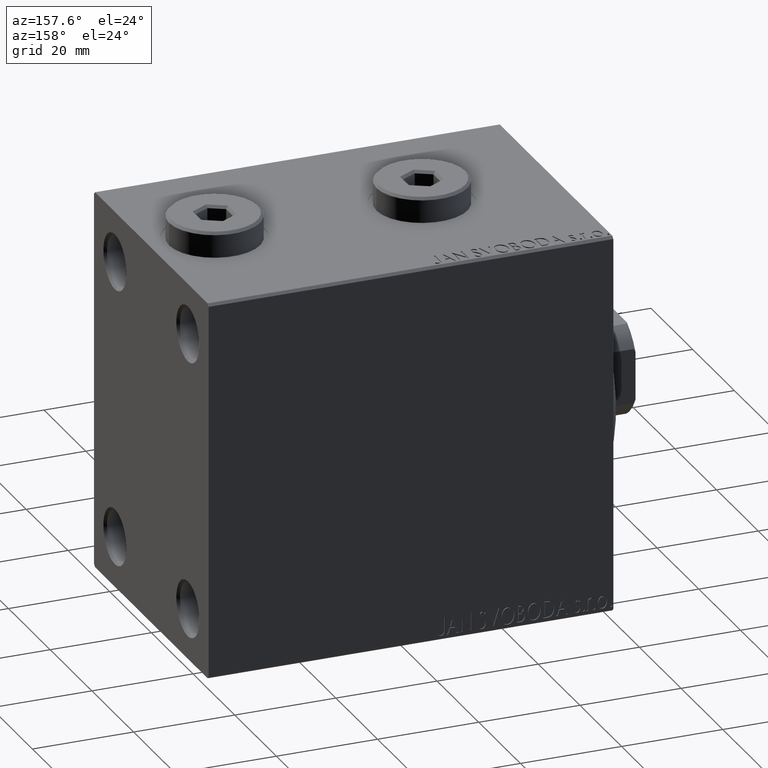
[diagram: clean part render]
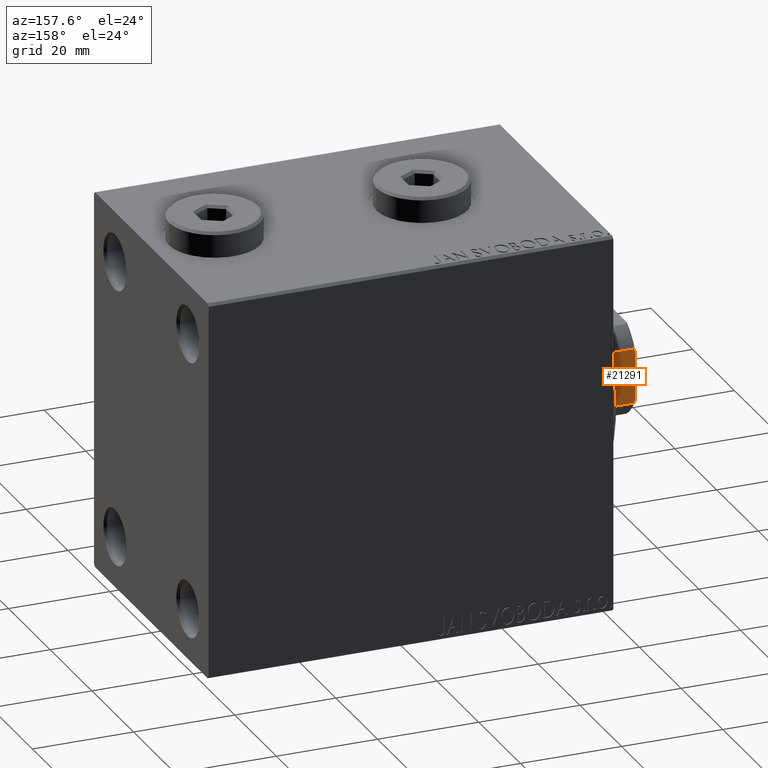
[diagram: same view with one face highlighted and labeled with its STEP entity id]
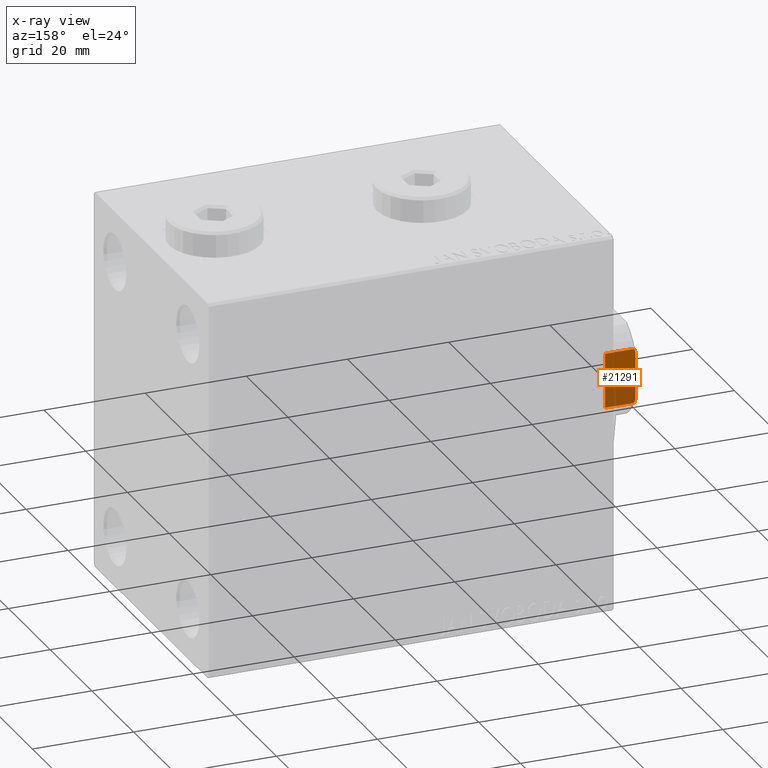
[diagram: x-ray of the same camera — body ghosted, the highlighted face saturated]
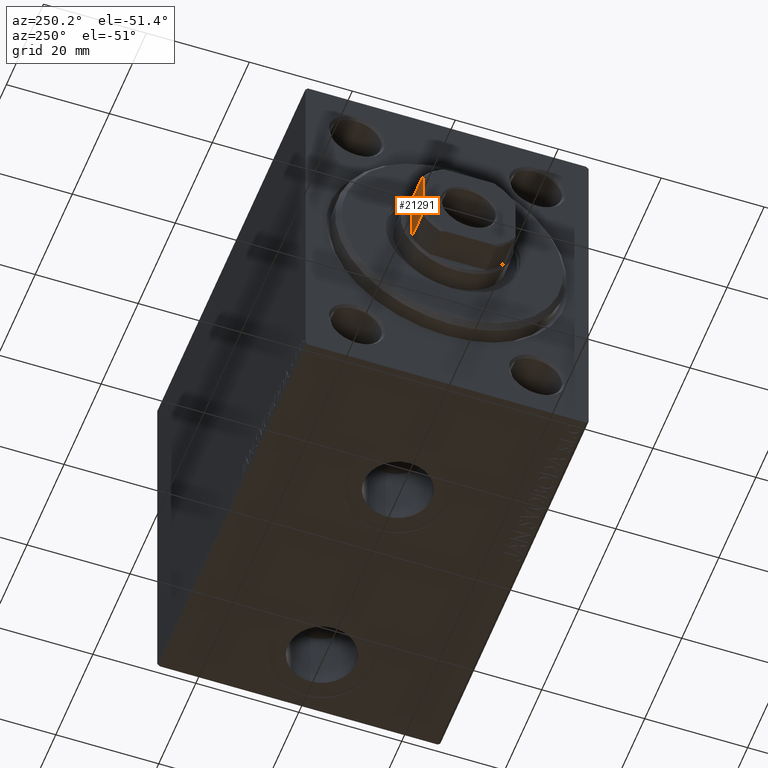
[diagram: same view with one face highlighted and labeled with its STEP entity id]
A machine part, auxiliary view. The second image highlights one B-rep face of the part: STEP entity #21291.
The next image is the same camera in x-ray: the body ghosted, the highlighted face saturated — about 31% of this face is hidden behind the body in this view.
A second angle (auxiliary view) of the same face is appended — the face is thin or edge-on in the first view.
In plain terms, the highlighted planar face has unit normal (0, -1, 0).
Its self-contained STEP definition (entity closure, byte-faithful):
#185 = VERTEX_POINT ( 'NONE', #2838 ) ;
#917 = VERTEX_POINT ( 'NONE', #30959 ) ;
#1576 = DIRECTION ( 'NONE',  ( -1.000000000000000000, -0.000000000000000000, -0.000000000000000000 ) ) ;
#1762 = DIRECTION ( 'NONE',  ( 0.000000000000000000, -1.000000000000000000, 0.000000000000000000 ) ) ;
#2066 = CARTESIAN_POINT ( 'NONE',  ( -5.207299490555470811, 8.999999999999998224, 81.80354495430067630 ) ) ;
#2838 = CARTESIAN_POINT ( 'NONE',  ( 5.408326913195989682, 8.999999999999998224, 75.99999999999998579 ) ) ;
#3763 = VERTEX_POINT ( 'NONE', #33774 ) ;
#4731 = DIRECTION ( 'NONE',  ( -0.000000000000000000, -0.000000000000000000, 1.000000000000000000 ) ) ;
#6409 = VERTEX_POINT ( 'NONE', #11244 ) ;
#8424 = EDGE_CURVE ( 'NONE', #185, #6409, #32619, .T. ) ;
#8989 = CARTESIAN_POINT ( 'NONE',  ( -5.004607318780300851, 8.999999999999998224, 81.90371420292692051 ) ) ;
#9526 = LINE ( 'NONE', #16204, #22149 ) ;
#10531 = B_SPLINE_CURVE_WITH_KNOTS ( 'NONE', 3,
 ( #16810, #2066, #8989, #44010 ),
 .UNSPECIFIED., .F., .F.,
 ( 4, 4 ),
 ( 0.000000000000000000, 0.0006782784334759402959 ),
 .UNSPECIFIED. ) ;
#10779 = CARTESIAN_POINT ( 'NONE',  ( 5.004607318780310621, 8.999999999999998224, 81.90371420292692051 ) ) ;
#11002 = CARTESIAN_POINT ( 'NONE',  ( 5.408326913195989682, 8.999999999999998224, 81.69999999999998863 ) ) ;
#11244 = CARTESIAN_POINT ( 'NONE',  ( 5.408326913195989682, 8.999999999999998224, 81.69999999999998863 ) ) ;
#13610 = LINE ( 'NONE', #38049, #35083 ) ;
#15599 = FACE_OUTER_BOUND ( 'NONE', #27708, .T. ) ;
#16204 = CARTESIAN_POINT ( 'NONE',  ( -5.408326913195988794, 8.999999999999998224, -0.001000000000001000089 ) ) ;
#16810 = CARTESIAN_POINT ( 'NONE',  ( -5.408326913195988794, 8.999999999999998224, 81.69999999999998863 ) ) ;
#17896 = CARTESIAN_POINT ( 'NONE',  ( 5.408326913195989682, 8.999999999999998224, -0.001000000000001000089 ) ) ;
#19023 = CARTESIAN_POINT ( 'NONE',  ( 4.800000000000012257, 8.999999999999998224, 82.00000000000000000 ) ) ;
#19668 = EDGE_CURVE ( 'NONE', #185, #3763, #39851, .T. ) ;
#19856 = ORIENTED_EDGE ( 'NONE', *, *, #19668, .T. ) ;
#21116 = VERTEX_POINT ( 'NONE', #41002 ) ;
#21291 = ADVANCED_FACE ( 'NONE', ( #15599 ), #29642, .F. ) ;
#22149 = VECTOR ( 'NONE', #44313, 1000.000000000000000 ) ;
#25376 = VECTOR ( 'NONE', #4731, 1000.000000000000000 ) ;
#25629 = ORIENTED_EDGE ( 'NONE', *, *, #8424, .F. ) ;
#26619 = ORIENTED_EDGE ( 'NONE', *, *, #37888, .T. ) ;
#27708 = EDGE_LOOP ( 'NONE', ( #30667, #34014, #25629, #19856, #39732, #26619 ) ) ;
#27936 = VECTOR ( 'NONE', #1576, 1000.000000000000000 ) ;
#28362 = EDGE_CURVE ( 'NONE', #3763, #917, #9526, .T. ) ;
#29642 = PLANE ( 'NONE',  #38275 ) ;
#30137 = CARTESIAN_POINT ( 'NONE',  ( -9.000000000000001776, 8.999999999999998224, 76.00000000000000000 ) ) ;
#30667 = ORIENTED_EDGE ( 'NONE', *, *, #40175, .F. ) ;
#30959 = CARTESIAN_POINT ( 'NONE',  ( -5.408326913195988794, 8.999999999999998224, 81.69999999999998863 ) ) ;
#32619 = LINE ( 'NONE', #17896, #25376 ) ;
#32879 = DIRECTION ( 'NONE',  ( 0.000000000000000000, -0.000000000000000000, -1.000000000000000000 ) ) ;
#33338 = CARTESIAN_POINT ( 'NONE',  ( -9.000000000000001776, 8.999999999999998224, 82.00000000000000000 ) ) ;
#33774 = CARTESIAN_POINT ( 'NONE',  ( -5.408326913195987018, 8.999999999999998224, 75.99999999999998579 ) ) ;
#34014 = ORIENTED_EDGE ( 'NONE', *, *, #39355, .T. ) ;
#35083 = VECTOR ( 'NONE', #42190, 1000.000000000000000 ) ;
#36269 = B_SPLINE_CURVE_WITH_KNOTS ( 'NONE', 3,
 ( #42578, #10779, #41908, #11002 ),
 .UNSPECIFIED., .F., .F.,
 ( 4, 4 ),
 ( 0.000000000000000000, 0.0006782784334759224066 ),
 .UNSPECIFIED. ) ;
#37888 = EDGE_CURVE ( 'NONE', #917, #21116, #10531, .T. ) ;
#38049 = CARTESIAN_POINT ( 'NONE',  ( -9.000000000000001776, 8.999999999999998224, 82.00000000000000000 ) ) ;
#38275 = AXIS2_PLACEMENT_3D ( 'NONE', #33338, #1762, #32879 ) ;
#39355 = EDGE_CURVE ( 'NONE', #43697, #6409, #36269, .T. ) ;
#39732 = ORIENTED_EDGE ( 'NONE', *, *, #28362, .T. ) ;
#39851 = LINE ( 'NONE', #30137, #27936 ) ;
#40175 = EDGE_CURVE ( 'NONE', #43697, #21116, #13610, .T. ) ;
#41002 = CARTESIAN_POINT ( 'NONE',  ( -4.799999999999990941, 8.999999999999998224, 82.00000000000000000 ) ) ;
#41908 = CARTESIAN_POINT ( 'NONE',  ( 5.207299490555477917, 8.999999999999998224, 81.80354495430067630 ) ) ;
#42190 = DIRECTION ( 'NONE',  ( -1.000000000000000000, -0.000000000000000000, -0.000000000000000000 ) ) ;
#42578 = CARTESIAN_POINT ( 'NONE',  ( 4.800000000000012257, 8.999999999999998224, 82.00000000000000000 ) ) ;
#43697 = VERTEX_POINT ( 'NONE', #19023 ) ;
#44010 = CARTESIAN_POINT ( 'NONE',  ( -4.799999999999990941, 8.999999999999998224, 82.00000000000000000 ) ) ;
#44313 = DIRECTION ( 'NONE',  ( -0.000000000000000000, -0.000000000000000000, 1.000000000000000000 ) ) ;